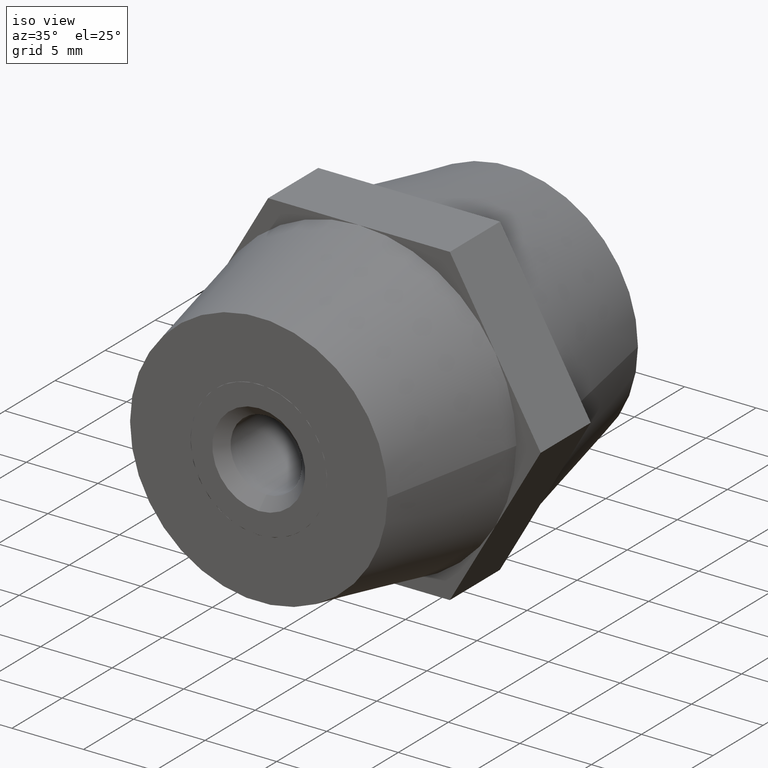
[diagram: clean part render]
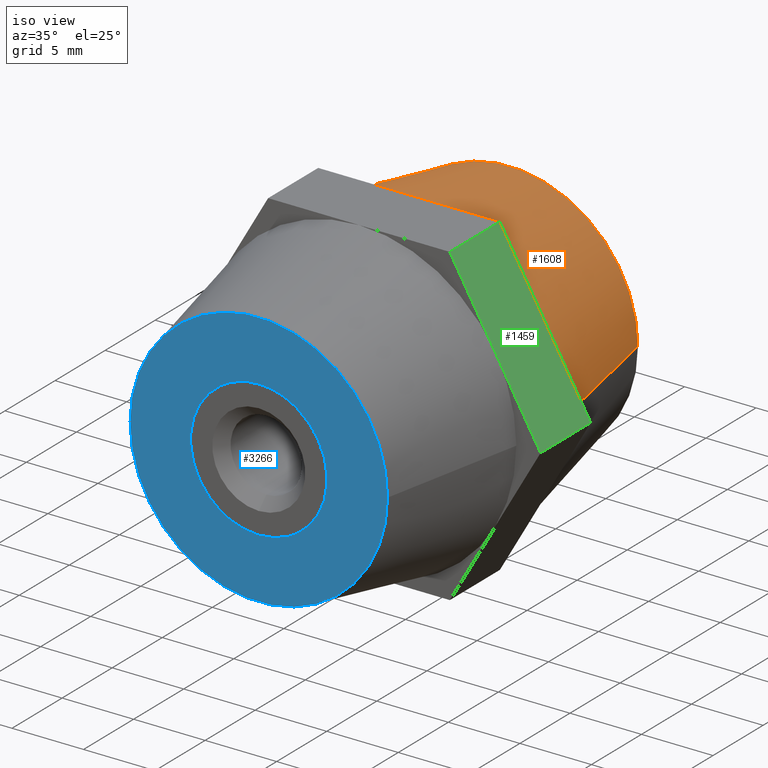
[diagram: same view with three faces highlighted in distinct colors, each labeled with its STEP entity id]
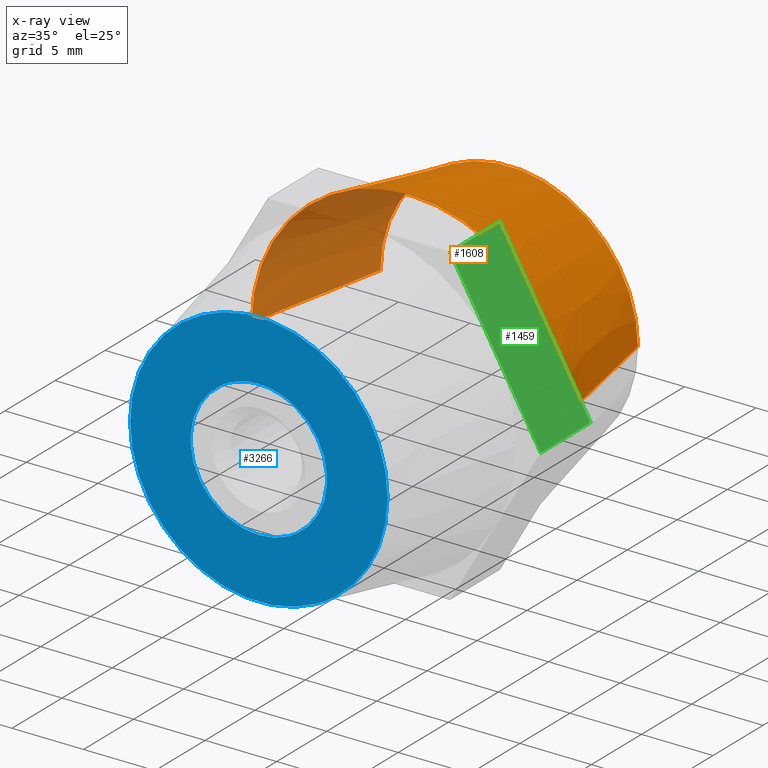
[diagram: x-ray of the same camera — body ghosted, the three highlighted faces saturated]
A machine part, iso view with three faces highlighted in distinct colors.
The next image is the same camera in x-ray (body ghosted, the three faces saturated) — at least one of them is partly hidden behind the body in this view.
Their STEP definitions:

[orange] entity #1608 — the highlighted conical surface has half-angle 11.31 deg.
#2 = CARTESIAN_POINT ( 'NONE',  ( 9.000000000000000000, 12.50000000000000200, 0.0000000000000000000 ) ) ;
#12 = DIRECTION ( 'NONE',  ( -0.1961161351381839600, -0.9805806756909202200, 2.401729971581268900E-017 ) ) ;
#16 = LINE ( 'NONE', #2, #1617 ) ;
#57 = ORIENTED_EDGE ( 'NONE', *, *, #3780, .T. ) ;
#111 = CARTESIAN_POINT ( 'NONE',  ( 1.224646799147351900E-015, 2.500000000000000000, 0.0000000000000000000 ) ) ;
#169 = CARTESIAN_POINT ( 'NONE',  ( 9.526279441628831900, 2.500000000000000000, 5.500000000000000000 ) ) ;
#291 = CARTESIAN_POINT ( 'NONE',  ( 1.224646799147351900E-015, 2.500000000000000000, 0.0000000000000000000 ) ) ;
#393 = CARTESIAN_POINT ( 'NONE',  ( -10.99999999999999800, 2.499999999999998200, 1.347111479062088400E-015 ) ) ;
#417 = AXIS2_PLACEMENT_3D ( 'NONE', #555, #1751, #3284 ) ;
#455 = DIRECTION ( 'NONE',  ( -1.224646799147352000E-016, 1.000000000000000000, 0.0000000000000000000 ) ) ;
#481 = AXIS2_PLACEMENT_3D ( 'NONE', #1729, #2333, #842 ) ;
#555 = CARTESIAN_POINT ( 'NONE',  ( -1.349783804395671800E-031, 12.50000000000000000, 0.0000000000000000000 ) ) ;
#565 = ORIENTED_EDGE ( 'NONE', *, *, #1288, .T. ) ;
#774 = AXIS2_PLACEMENT_3D ( 'NONE', #918, #1191, #1178 ) ;
#804 = LINE ( 'NONE', #3629, #1282 ) ;
#842 = DIRECTION ( 'NONE',  ( 1.000000000000000000, 1.927470528863119000E-016, 0.0000000000000000000 ) ) ;
#865 = VERTEX_POINT ( 'NONE', #2362 ) ;
#888 = ORIENTED_EDGE ( 'NONE', *, *, #1856, .T. ) ;
#911 = VERTEX_POINT ( 'NONE', #2350 ) ;
#918 = CARTESIAN_POINT ( 'NONE',  ( 1.224646799147351900E-015, 2.500000000000000000, 0.0000000000000000000 ) ) ;
#1069 = VERTEX_POINT ( 'NONE', #1212 ) ;
#1072 = DIRECTION ( 'NONE',  ( -1.000000000000000000, -1.182766006347823100E-016, 0.0000000000000000000 ) ) ;
#1178 = DIRECTION ( 'NONE',  ( -1.000000000000000000, -1.182766006347823100E-016, 0.0000000000000000000 ) ) ;
#1191 = DIRECTION ( 'NONE',  ( -1.224646799147352000E-016, 1.000000000000000000, 0.0000000000000000000 ) ) ;
#1212 = CARTESIAN_POINT ( 'NONE',  ( 9.000000000000000000, 12.50000000000000200, 0.0000000000000000000 ) ) ;
#1235 = CIRCLE ( 'NONE', #774, 11.00000000000000000 ) ;
#1282 = VECTOR ( 'NONE', #12, 1000.000000000000000 ) ;
#1288 = EDGE_CURVE ( 'NONE', #865, #2404, #2522, .T. ) ;
#1315 = DIRECTION ( 'NONE',  ( -1.000000000000000000, -1.182766006347823100E-016, 0.0000000000000000000 ) ) ;
#1383 = AXIS2_PLACEMENT_3D ( 'NONE', #291, #3308, #1472 ) ;
#1404 = ORIENTED_EDGE ( 'NONE', *, *, #3602, .F. ) ;
#1472 = DIRECTION ( 'NONE',  ( -1.000000000000000000, -1.182766006347823100E-016, 0.0000000000000000000 ) ) ;
#1505 = DIRECTION ( 'NONE',  ( 0.1961161351381841600, -0.9805806756909201100, 0.0000000000000000000 ) ) ;
#1519 = VERTEX_POINT ( 'NONE', #1601 ) ;
#1601 = CARTESIAN_POINT ( 'NONE',  ( -9.000000000000000000, 12.49999999999999800, 1.224646799147353300E-015 ) ) ;
#1608 = ADVANCED_FACE ( 'NONE', ( #2195 ), #2621, .T. ) ;
#1617 = VECTOR ( 'NONE', #1505, 1000.000000000000100 ) ;
#1653 = CIRCLE ( 'NONE', #417, 9.000000000000000000 ) ;
#1729 = CARTESIAN_POINT ( 'NONE',  ( -1.349783804395671800E-031, 12.50000000000000000, 0.0000000000000000000 ) ) ;
#1751 = DIRECTION ( 'NONE',  ( -1.224646799147352000E-016, 1.000000000000000000, 0.0000000000000000000 ) ) ;
#1766 = EDGE_CURVE ( 'NONE', #3722, #865, #1235, .T. ) ;
#1856 = EDGE_CURVE ( 'NONE', #3298, #911, #2049, .T. ) ;
#1938 = CARTESIAN_POINT ( 'NONE',  ( 1.925929944387235000E-031, 2.500000000000000000, 11.00000000000000000 ) ) ;
#2049 = CIRCLE ( 'NONE', #1383, 11.00000000000000000 ) ;
#2132 = CIRCLE ( 'NONE', #3842, 11.00000000000000000 ) ;
#2154 = EDGE_CURVE ( 'NONE', #1069, #911, #16, .T. ) ;
#2195 = FACE_OUTER_BOUND ( 'NONE', #3130, .T. ) ;
#2265 = CARTESIAN_POINT ( 'NONE',  ( 1.224646799147351900E-015, 2.500000000000000000, 0.0000000000000000000 ) ) ;
#2333 = DIRECTION ( 'NONE',  ( 1.224646799147352000E-016, -1.000000000000000000, 0.0000000000000000000 ) ) ;
#2350 = CARTESIAN_POINT ( 'NONE',  ( 11.00000000000000200, 2.500000000000001800, 0.0000000000000000000 ) ) ;
#2362 = CARTESIAN_POINT ( 'NONE',  ( -9.526279441628831900, 2.500000000000000000, 5.500000000000000000 ) ) ;
#2390 = ORIENTED_EDGE ( 'NONE', *, *, #1766, .T. ) ;
#2404 = VERTEX_POINT ( 'NONE', #1938 ) ;
#2486 = DIRECTION ( 'NONE',  ( -1.224646799147352000E-016, 1.000000000000000000, 0.0000000000000000000 ) ) ;
#2522 = CIRCLE ( 'NONE', #3122, 11.00000000000000000 ) ;
#2621 = CONICAL_SURFACE ( 'NONE', #481, 9.000000000000000000, 0.1973955598498807800 ) ;
#3037 = ORIENTED_EDGE ( 'NONE', *, *, #2154, .F. ) ;
#3112 = ORIENTED_EDGE ( 'NONE', *, *, #3640, .T. ) ;
#3122 = AXIS2_PLACEMENT_3D ( 'NONE', #2265, #455, #1072 ) ;
#3130 = EDGE_LOOP ( 'NONE', ( #1404, #57, #2390, #565, #3112, #888, #3037 ) ) ;
#3284 = DIRECTION ( 'NONE',  ( -1.000000000000000000, -1.927470528863119000E-016, 0.0000000000000000000 ) ) ;
#3298 = VERTEX_POINT ( 'NONE', #169 ) ;
#3308 = DIRECTION ( 'NONE',  ( -1.224646799147352000E-016, 1.000000000000000000, 0.0000000000000000000 ) ) ;
#3602 = EDGE_CURVE ( 'NONE', #1519, #1069, #1653, .T. ) ;
#3629 = CARTESIAN_POINT ( 'NONE',  ( -9.000000000000000000, 12.49999999999999800, 1.102182119232617700E-015 ) ) ;
#3640 = EDGE_CURVE ( 'NONE', #2404, #3298, #2132, .T. ) ;
#3722 = VERTEX_POINT ( 'NONE', #393 ) ;
#3780 = EDGE_CURVE ( 'NONE', #1519, #3722, #804, .T. ) ;
#3842 = AXIS2_PLACEMENT_3D ( 'NONE', #111, #2486, #1315 ) ;

[blue] entity #3266 — the highlighted planar face has unit normal (0, -1, 0).
#18 = DIRECTION ( 'NONE',  ( 1.261786539621752000E-015, 1.545242846954995000E-031, 1.000000000000000000 ) ) ;
#135 = DIRECTION ( 'NONE',  ( -1.224646799147352000E-016, 1.000000000000000000, -0.0000000000000000000 ) ) ;
#229 = DIRECTION ( 'NONE',  ( -1.224646799147352000E-016, 1.000000000000000000, -0.0000000000000000000 ) ) ;
#272 = ORIENTED_EDGE ( 'NONE', *, *, #2318, .T. ) ;
#285 = DIRECTION ( 'NONE',  ( -0.8660254037844387100, -1.060575238724905700E-016, 0.4999999999999998900 ) ) ;
#337 = CARTESIAN_POINT ( 'NONE',  ( 4.762500000000000200, -12.50000000000000000, 0.3087879531335140400 ) ) ;
#352 = CARTESIAN_POINT ( 'NONE',  ( -4.762500000000000200, -12.50000000000000000, -5.346820461647119800E-015 ) ) ;
#397 = CARTESIAN_POINT ( 'NONE',  ( -4.762500000000000200, -12.50000000000000000, 0.3087879531329060200 ) ) ;
#401 = CIRCLE ( 'NONE', #3774, 4.772500000000000000 ) ;
#413 = DIRECTION ( 'NONE',  ( -1.000000000000000000, -1.927470528863119000E-016, 0.0000000000000000000 ) ) ;
#424 = VERTEX_POINT ( 'NONE', #1768 ) ;
#449 = LINE ( 'NONE', #3721, #2240 ) ;
#465 = ORIENTED_EDGE ( 'NONE', *, *, #550, .T. ) ;
#503 = DIRECTION ( 'NONE',  ( 1.000000000000000000, 0.0000000000000000000, 7.105427357601001900E-015 ) ) ;
#543 = DIRECTION ( 'NONE',  ( -1.224646799147352000E-016, 1.000000000000000000, -0.0000000000000000000 ) ) ;
#550 = EDGE_CURVE ( 'NONE', #2875, #659, #2256, .T. ) ;
#556 = VERTEX_POINT ( 'NONE', #337 ) ;
#571 = CARTESIAN_POINT ( 'NONE',  ( -8.999999999999996400, -12.50000000000000200, 0.0000000000000000000 ) ) ;
#582 = CIRCLE ( 'NONE', #678, 4.772500000000000000 ) ;
#603 = EDGE_LOOP ( 'NONE', ( #2239, #1089 ) ) ;
#659 = VERTEX_POINT ( 'NONE', #1272 ) ;
#662 = DIRECTION ( 'NONE',  ( -1.224646799147352000E-016, 1.000000000000000000, -0.0000000000000000000 ) ) ;
#678 = AXIS2_PLACEMENT_3D ( 'NONE', #3274, #543, #1756 ) ;
#718 = CARTESIAN_POINT ( 'NONE',  ( 2.022226441606597600E-030, -12.50000000000000000, 4.772500000000000000 ) ) ;
#767 = ORIENTED_EDGE ( 'NONE', *, *, #2560, .T. ) ;
#807 = LINE ( 'NONE', #2177, #3607 ) ;
#835 = CARTESIAN_POINT ( 'NONE',  ( -4.368750000000000400, -12.50000000000000000, -8.021560302553369900 ) ) ;
#841 = ORIENTED_EDGE ( 'NONE', *, *, #3730, .T. ) ;
#855 = AXIS2_PLACEMENT_3D ( 'NONE', #2644, #2973, #2782 ) ;
#886 = CARTESIAN_POINT ( 'NONE',  ( -9.131249999999999600, -12.50000000000000000, -0.2273316684934490200 ) ) ;
#906 = FACE_OUTER_BOUND ( 'NONE', #603, .T. ) ;
#969 = DIRECTION ( 'NONE',  ( 0.8660254037844387100, 1.060575238724905700E-016, -0.4999999999999998900 ) ) ;
#992 = VECTOR ( 'NONE', #2966, 1000.000000000000000 ) ;
#1005 = LINE ( 'NONE', #352, #1520 ) ;
#1048 = DIRECTION ( 'NONE',  ( 1.000000000000000000, 0.0000000000000000000, -2.664535259100375700E-015 ) ) ;
#1089 = ORIENTED_EDGE ( 'NONE', *, *, #3745, .F. ) ;
#1098 = LINE ( 'NONE', #3466, #2245 ) ;
#1114 = ORIENTED_EDGE ( 'NONE', *, *, #3353, .T. ) ;
#1125 = AXIS2_PLACEMENT_3D ( 'NONE', #1714, #229, #503 ) ;
#1272 = CARTESIAN_POINT ( 'NONE',  ( -2.648668211795669700, -12.50000000000000000, 3.970052008957005300 ) ) ;
#1329 = CIRCLE ( 'NONE', #1924, 4.772500000000000000 ) ;
#1353 = DIRECTION ( 'NONE',  ( 1.224646799147352000E-016, -1.000000000000000000, 0.0000000000000000000 ) ) ;
#1380 = PLANE ( 'NONE',  #1977 ) ;
#1413 = DIRECTION ( 'NONE',  ( 1.000000000000000000, 1.224646799147352000E-016, 0.0000000000000000000 ) ) ;
#1440 = EDGE_CURVE ( 'NONE', #1962, #2875, #1005, .T. ) ;
#1462 = CARTESIAN_POINT ( 'NONE',  ( 5.844626848930769500E-016, -12.50000000000000000, 0.0000000000000000000 ) ) ;
#1507 = AXIS2_PLACEMENT_3D ( 'NONE', #1956, #135, #1048 ) ;
#1520 = VECTOR ( 'NONE', #18, 1000.000000000000000 ) ;
#1637 = VERTEX_POINT ( 'NONE', #2961 ) ;
#1714 = CARTESIAN_POINT ( 'NONE',  ( 5.844626848930769500E-016, -12.50000000000000000, 0.0000000000000000000 ) ) ;
#1739 = AXIS2_PLACEMENT_3D ( 'NONE', #3484, #2855, #413 ) ;
#1756 = DIRECTION ( 'NONE',  ( 1.000000000000000000, 0.0000000000000000000, -1.776356839400250500E-015 ) ) ;
#1768 = CARTESIAN_POINT ( 'NONE',  ( -2.648668211795784700, -12.50000000000000000, -3.970052008956924400 ) ) ;
#1833 = CARTESIAN_POINT ( 'NONE',  ( 5.844626848930769500E-016, -12.50000000000000000, 0.0000000000000000000 ) ) ;
#1851 = LINE ( 'NONE', #886, #3707 ) ;
#1853 = CARTESIAN_POINT ( 'NONE',  ( 2.113831788204429500, -12.50000000000000000, 4.278839962089825200 ) ) ;
#1866 = VERTEX_POINT ( 'NONE', #3601 ) ;
#1878 = ORIENTED_EDGE ( 'NONE', *, *, #2930, .T. ) ;
#1903 = EDGE_LOOP ( 'NONE', ( #1114, #3538, #3896, #767, #841, #2271, #2566, #3802, #3393, #465, #272, #1878, #2791 ) ) ;
#1924 = AXIS2_PLACEMENT_3D ( 'NONE', #2468, #662, #2788 ) ;
#1926 = VERTEX_POINT ( 'NONE', #3064 ) ;
#1933 = DIRECTION ( 'NONE',  ( 0.0000000000000000000, 0.0000000000000000000, -1.000000000000000000 ) ) ;
#1956 = CARTESIAN_POINT ( 'NONE',  ( 5.844626848930769500E-016, -12.50000000000000000, 0.0000000000000000000 ) ) ;
#1962 = VERTEX_POINT ( 'NONE', #2266 ) ;
#1970 = EDGE_CURVE ( 'NONE', #3880, #556, #2668, .T. ) ;
#1977 = AXIS2_PLACEMENT_3D ( 'NONE', #2893, #1353, #1413 ) ;
#2010 = VERTEX_POINT ( 'NONE', #718 ) ;
#2030 = CARTESIAN_POINT ( 'NONE',  ( 9.000000000000003600, -12.49999999999999800, 1.224646799147353300E-015 ) ) ;
#2177 = CARTESIAN_POINT ( 'NONE',  ( -4.368750000000000400, -12.50000000000000000, 8.021560302553410800 ) ) ;
#2181 = CIRCLE ( 'NONE', #855, 9.000000000000000000 ) ;
#2230 = DIRECTION ( 'NONE',  ( 0.8660254037844383700, 1.060575238724906500E-016, 0.5000000000000003300 ) ) ;
#2239 = ORIENTED_EDGE ( 'NONE', *, *, #2325, .F. ) ;
#2240 = VECTOR ( 'NONE', #1933, 1000.000000000000000 ) ;
#2245 = VECTOR ( 'NONE', #2230, 1000.000000000000100 ) ;
#2256 = CIRCLE ( 'NONE', #3813, 4.772500000000000000 ) ;
#2266 = CARTESIAN_POINT ( 'NONE',  ( -4.762500000000000200, -12.50000000000000000, -0.3087879531328934800 ) ) ;
#2271 = ORIENTED_EDGE ( 'NONE', *, *, #2287, .T. ) ;
#2287 = EDGE_CURVE ( 'NONE', #3459, #1866, #1329, .T. ) ;
#2318 = EDGE_CURVE ( 'NONE', #659, #2598, #1098, .T. ) ;
#2325 = EDGE_CURVE ( 'NONE', #2985, #3493, #3054, .T. ) ;
#2365 = DIRECTION ( 'NONE',  ( -1.224646799147352000E-016, 1.000000000000000000, -0.0000000000000000000 ) ) ;
#2406 = EDGE_CURVE ( 'NONE', #2010, #3404, #3339, .T. ) ;
#2448 = DIRECTION ( 'NONE',  ( -1.224646799147352000E-016, 1.000000000000000000, -0.0000000000000000000 ) ) ;
#2468 = CARTESIAN_POINT ( 'NONE',  ( 5.844626848930769500E-016, -12.50000000000000000, 0.0000000000000000000 ) ) ;
#2560 = EDGE_CURVE ( 'NONE', #1637, #1926, #401, .T. ) ;
#2566 = ORIENTED_EDGE ( 'NONE', *, *, #2593, .T. ) ;
#2593 = EDGE_CURVE ( 'NONE', #1866, #424, #1851, .T. ) ;
#2598 = VERTEX_POINT ( 'NONE', #3878 ) ;
#2644 = CARTESIAN_POINT ( 'NONE',  ( 3.061616997868384600E-015, -12.50000000000000000, 0.0000000000000000000 ) ) ;
#2665 = FACE_BOUND ( 'NONE', #1903, .T. ) ;
#2668 = CIRCLE ( 'NONE', #1507, 4.772500000000000000 ) ;
#2701 = DIRECTION ( 'NONE',  ( 1.000000000000000000, 0.0000000000000000000, 0.0000000000000000000 ) ) ;
#2706 = LINE ( 'NONE', #835, #992 ) ;
#2782 = DIRECTION ( 'NONE',  ( -1.000000000000000000, -1.927470528863119000E-016, 0.0000000000000000000 ) ) ;
#2788 = DIRECTION ( 'NONE',  ( 1.000000000000000000, 0.0000000000000000000, 0.0000000000000000000 ) ) ;
#2791 = ORIENTED_EDGE ( 'NONE', *, *, #2406, .T. ) ;
#2816 = DIRECTION ( 'NONE',  ( -1.224646799147352000E-016, 1.000000000000000000, -0.0000000000000000000 ) ) ;
#2855 = DIRECTION ( 'NONE',  ( -1.224646799147352000E-016, 1.000000000000000000, 0.0000000000000000000 ) ) ;
#2862 = CIRCLE ( 'NONE', #2874, 4.772500000000000000 ) ;
#2874 = AXIS2_PLACEMENT_3D ( 'NONE', #3114, #2816, #3132 ) ;
#2875 = VERTEX_POINT ( 'NONE', #397 ) ;
#2876 = EDGE_CURVE ( 'NONE', #424, #1962, #2862, .T. ) ;
#2893 = CARTESIAN_POINT ( 'NONE',  ( -9.000000000000000000, -12.50000000000000000, 0.0000000000000000000 ) ) ;
#2930 = EDGE_CURVE ( 'NONE', #2598, #2010, #582, .T. ) ;
#2961 = CARTESIAN_POINT ( 'NONE',  ( 4.762500000000000200, -12.50000000000016000, -0.3087879531335430700 ) ) ;
#2966 = DIRECTION ( 'NONE',  ( -0.8660254037844387100, -1.060575238724907700E-016, -0.4999999999999998900 ) ) ;
#2973 = DIRECTION ( 'NONE',  ( -1.224646799147352000E-016, 1.000000000000000000, 0.0000000000000000000 ) ) ;
#2985 = VERTEX_POINT ( 'NONE', #571 ) ;
#3054 = CIRCLE ( 'NONE', #1739, 9.000000000000000000 ) ;
#3064 = CARTESIAN_POINT ( 'NONE',  ( 2.648668211796110200, -12.50000000000000000, -3.970052008956710400 ) ) ;
#3069 = DIRECTION ( 'NONE',  ( 1.000000000000000000, 0.0000000000000000000, 0.0000000000000000000 ) ) ;
#3114 = CARTESIAN_POINT ( 'NONE',  ( 5.844626848930769500E-016, -12.50000000000000000, 0.0000000000000000000 ) ) ;
#3115 = EDGE_CURVE ( 'NONE', #556, #1637, #449, .T. ) ;
#3132 = DIRECTION ( 'NONE',  ( 1.000000000000000000, 0.0000000000000000000, -8.881784197001252300E-016 ) ) ;
#3266 = ADVANCED_FACE ( 'NONE', ( #906, #2665 ), #1380, .T. ) ;
#3274 = CARTESIAN_POINT ( 'NONE',  ( 5.844626848930769500E-016, -12.50000000000000000, 0.0000000000000000000 ) ) ;
#3286 = CARTESIAN_POINT ( 'NONE',  ( 2.648668211795620000, -12.50000000000000000, 3.970052008957034600 ) ) ;
#3339 = CIRCLE ( 'NONE', #1125, 4.772500000000000000 ) ;
#3353 = EDGE_CURVE ( 'NONE', #3404, #3880, #807, .T. ) ;
#3393 = ORIENTED_EDGE ( 'NONE', *, *, #1440, .T. ) ;
#3404 = VERTEX_POINT ( 'NONE', #1853 ) ;
#3459 = VERTEX_POINT ( 'NONE', #3496 ) ;
#3466 = CARTESIAN_POINT ( 'NONE',  ( -9.131249999999999600, -12.50000000000000000, 0.2273316684934445200 ) ) ;
#3484 = CARTESIAN_POINT ( 'NONE',  ( 3.061616997868384600E-015, -12.50000000000000000, 0.0000000000000000000 ) ) ;
#3493 = VERTEX_POINT ( 'NONE', #2030 ) ;
#3496 = CARTESIAN_POINT ( 'NONE',  ( 2.113831788203889900, -12.50000000000000000, -4.278839962090089900 ) ) ;
#3538 = ORIENTED_EDGE ( 'NONE', *, *, #1970, .T. ) ;
#3601 = CARTESIAN_POINT ( 'NONE',  ( -2.113831788204244800, -12.50000000000000000, -4.278839962089914900 ) ) ;
#3607 = VECTOR ( 'NONE', #969, 1000.000000000000000 ) ;
#3707 = VECTOR ( 'NONE', #285, 1000.000000000000000 ) ;
#3721 = CARTESIAN_POINT ( 'NONE',  ( 4.762500000000000200, -12.50000000000000000, 0.0000000000000000000 ) ) ;
#3730 = EDGE_CURVE ( 'NONE', #1926, #3459, #2706, .T. ) ;
#3745 = EDGE_CURVE ( 'NONE', #3493, #2985, #2181, .T. ) ;
#3774 = AXIS2_PLACEMENT_3D ( 'NONE', #1462, #2365, #2701 ) ;
#3802 = ORIENTED_EDGE ( 'NONE', *, *, #2876, .T. ) ;
#3813 = AXIS2_PLACEMENT_3D ( 'NONE', #1833, #2448, #3069 ) ;
#3878 = CARTESIAN_POINT ( 'NONE',  ( -2.113831788204390000, -12.50000000000000000, 4.278839962089850100 ) ) ;
#3880 = VERTEX_POINT ( 'NONE', #3286 ) ;
#3896 = ORIENTED_EDGE ( 'NONE', *, *, #3115, .T. ) ;

[green] entity #1459 — the highlighted planar face has unit normal (-0.866, 0, -0.5).
#72 = VERTEX_POINT ( 'NONE', #3085 ) ;
#91 = VECTOR ( 'NONE', #2532, 1000.000000000000000 ) ;
#93 = EDGE_CURVE ( 'NONE', #1073, #3298, #2018, .T. ) ;
#148 = CARTESIAN_POINT ( 'NONE',  ( 6.350852961085890600, -2.500000000000000000, 11.00000000000000000 ) ) ;
#169 = CARTESIAN_POINT ( 'NONE',  ( 9.526279441628831900, 2.500000000000000000, 5.500000000000000000 ) ) ;
#216 = EDGE_CURVE ( 'NONE', #3170, #72, #687, .T. ) ;
#282 = EDGE_LOOP ( 'NONE', ( #819, #3653, #1064, #3016, #3715, #347 ) ) ;
#347 = ORIENTED_EDGE ( 'NONE', *, *, #3525, .T. ) ;
#515 = EDGE_CURVE ( 'NONE', #3298, #3170, #1530, .T. ) ;
#647 = CARTESIAN_POINT ( 'NONE',  ( 6.350852961085890600, 2.500000000000000000, 11.00000000000000000 ) ) ;
#660 = DIRECTION ( 'NONE',  ( -0.8660254037844387100, 0.0000000000000000000, -0.4999999999999998900 ) ) ;
#687 = LINE ( 'NONE', #1332, #91 ) ;
#779 = VECTOR ( 'NONE', #3457, 1000.000000000000000 ) ;
#819 = ORIENTED_EDGE ( 'NONE', *, *, #2581, .T. ) ;
#995 = LINE ( 'NONE', #1120, #3427 ) ;
#1043 = CARTESIAN_POINT ( 'NONE',  ( 6.350852961085890600, 2.500000000000000000, 11.00000000000000000 ) ) ;
#1064 = ORIENTED_EDGE ( 'NONE', *, *, #216, .F. ) ;
#1073 = VERTEX_POINT ( 'NONE', #1852 ) ;
#1120 = CARTESIAN_POINT ( 'NONE',  ( 6.350852961085890600, 2.500000000000000000, 11.00000000000000000 ) ) ;
#1236 = VECTOR ( 'NONE', #2037, 1000.000000000000000 ) ;
#1332 = CARTESIAN_POINT ( 'NONE',  ( 12.70170592217176000, 2.500000000000000000, -2.884158672701469700E-015 ) ) ;
#1459 = ADVANCED_FACE ( 'NONE', ( #3151 ), #2750, .F. ) ;
#1529 = DIRECTION ( 'NONE',  ( 0.4999999999999998900, 0.0000000000000000000, -0.8660254037844387100 ) ) ;
#1530 = LINE ( 'NONE', #3635, #2438 ) ;
#1852 = CARTESIAN_POINT ( 'NONE',  ( 6.350852961085890600, 2.500000000000000000, 11.00000000000000000 ) ) ;
#1972 = AXIS2_PLACEMENT_3D ( 'NONE', #647, #660, #3659 ) ;
#2018 = LINE ( 'NONE', #1043, #779 ) ;
#2037 = DIRECTION ( 'NONE',  ( 0.4999999999999998900, 0.0000000000000000000, -0.8660254037844387100 ) ) ;
#2066 = CARTESIAN_POINT ( 'NONE',  ( 6.350852961085890600, -2.500000000000000000, 11.00000000000000000 ) ) ;
#2385 = CARTESIAN_POINT ( 'NONE',  ( 9.526279441628831900, -2.500000000000000000, 5.500000000000000000 ) ) ;
#2438 = VECTOR ( 'NONE', #1529, 1000.000000000000000 ) ;
#2467 = LINE ( 'NONE', #2066, #1236 ) ;
#2532 = DIRECTION ( 'NONE',  ( 0.0000000000000000000, -1.000000000000000000, 0.0000000000000000000 ) ) ;
#2542 = VERTEX_POINT ( 'NONE', #2385 ) ;
#2552 = CARTESIAN_POINT ( 'NONE',  ( 12.70170592217176000, 2.500000000000000000, -2.884158672701469700E-015 ) ) ;
#2581 = EDGE_CURVE ( 'NONE', #2885, #2542, #3293, .T. ) ;
#2628 = EDGE_CURVE ( 'NONE', #2542, #72, #2467, .T. ) ;
#2663 = DIRECTION ( 'NONE',  ( 0.0000000000000000000, -1.000000000000000000, 0.0000000000000000000 ) ) ;
#2669 = VECTOR ( 'NONE', #3309, 1000.000000000000000 ) ;
#2750 = PLANE ( 'NONE',  #1972 ) ;
#2885 = VERTEX_POINT ( 'NONE', #148 ) ;
#3007 = CARTESIAN_POINT ( 'NONE',  ( 6.350852961085890600, -2.500000000000000000, 11.00000000000000000 ) ) ;
#3016 = ORIENTED_EDGE ( 'NONE', *, *, #515, .F. ) ;
#3085 = CARTESIAN_POINT ( 'NONE',  ( 12.70170592217176000, -2.500000000000000000, -2.884158672701469700E-015 ) ) ;
#3151 = FACE_OUTER_BOUND ( 'NONE', #282, .T. ) ;
#3170 = VERTEX_POINT ( 'NONE', #2552 ) ;
#3293 = LINE ( 'NONE', #3007, #2669 ) ;
#3298 = VERTEX_POINT ( 'NONE', #169 ) ;
#3309 = DIRECTION ( 'NONE',  ( 0.4999999999999998900, 0.0000000000000000000, -0.8660254037844387100 ) ) ;
#3427 = VECTOR ( 'NONE', #2663, 1000.000000000000000 ) ;
#3457 = DIRECTION ( 'NONE',  ( 0.4999999999999998900, 0.0000000000000000000, -0.8660254037844387100 ) ) ;
#3525 = EDGE_CURVE ( 'NONE', #1073, #2885, #995, .T. ) ;
#3635 = CARTESIAN_POINT ( 'NONE',  ( 6.350852961085890600, 2.500000000000000000, 11.00000000000000000 ) ) ;
#3653 = ORIENTED_EDGE ( 'NONE', *, *, #2628, .T. ) ;
#3659 = DIRECTION ( 'NONE',  ( -0.4999999999999998900, 0.0000000000000000000, 0.8660254037844387100 ) ) ;
#3715 = ORIENTED_EDGE ( 'NONE', *, *, #93, .F. ) ;